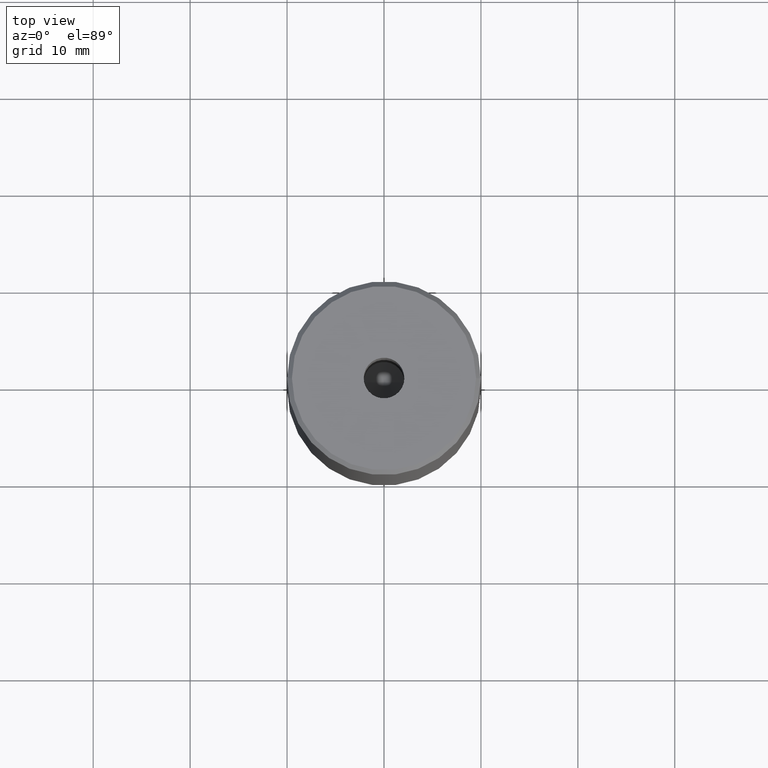
[diagram: clean part render]
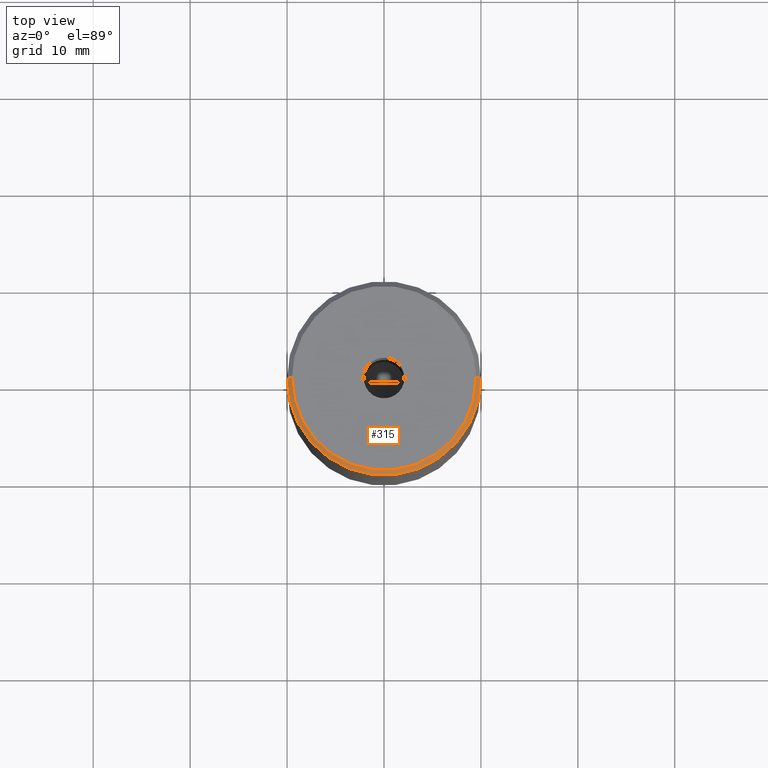
[diagram: same view with one face highlighted and labeled with its STEP entity id]
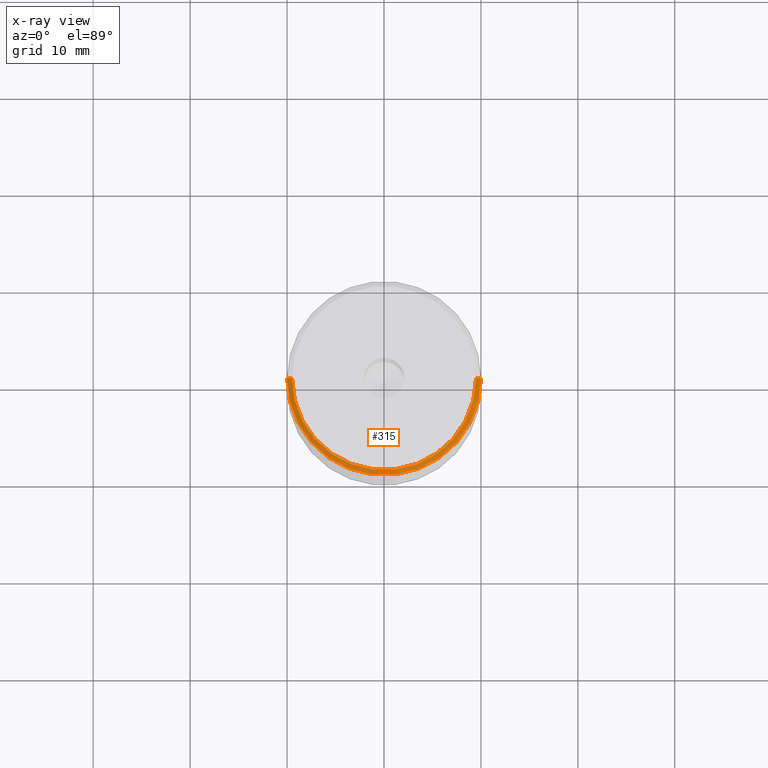
[diagram: x-ray of the same camera — body ghosted, the highlighted face saturated]
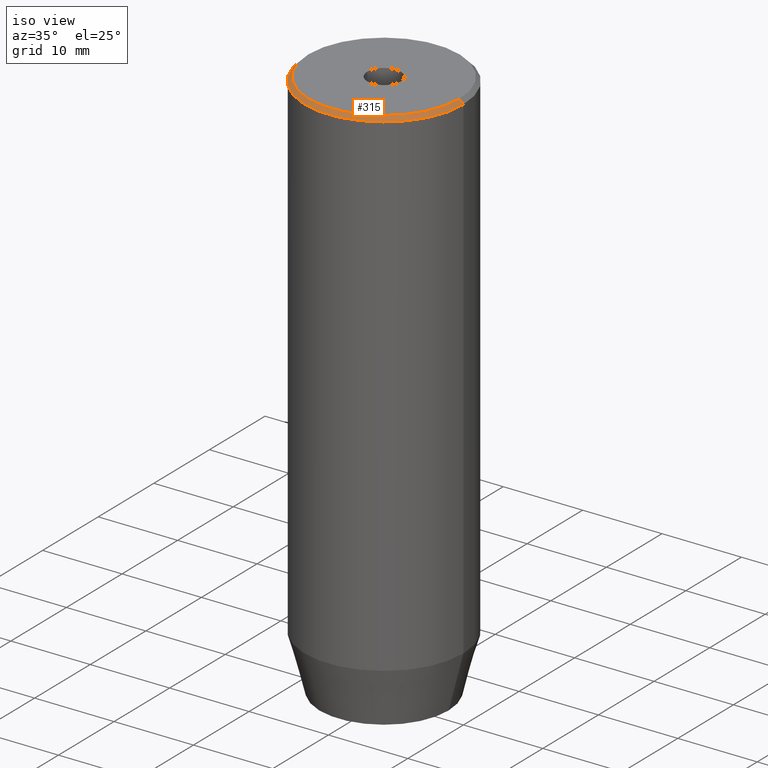
[diagram: same view with one face highlighted and labeled with its STEP entity id]
A machine part, top view. The second image highlights one B-rep face of the part: STEP entity #315.
The next image is the same camera in x-ray: the body ghosted, the highlighted face saturated — about 0% of this face is hidden behind the body in this view.
A second angle (iso view) of the same face is appended — the face is thin or edge-on in the first view.
In plain terms, the highlighted conical surface has half-angle 45 deg.
Its self-contained STEP definition (entity closure, byte-faithful):
#22 = DIRECTION ( 'NONE',  ( 1.000000000000000000, 0.000000000000000000, 0.000000000000000000 ) ) ;
#33 = DIRECTION ( 'NONE',  ( 0.7071067811865525687, 8.659560562354995721E-17, -0.7071067811865425767 ) ) ;
#36 = AXIS2_PLACEMENT_3D ( 'NONE', #190, #547, #22 ) ;
#38 = VECTOR ( 'NONE', #33, 999.9999999999998863 ) ;
#82 = EDGE_LOOP ( 'NONE', ( #308, #339, #504, #370 ) ) ;
#91 = FACE_OUTER_BOUND ( 'NONE', #82, .T. ) ;
#124 = LINE ( 'NONE', #417, #38 ) ;
#129 = CARTESIAN_POINT ( 'NONE',  ( 0.000000000000000000, 0.000000000000000000, 0.000000000000000000 ) ) ;
#132 = CONICAL_SURFACE ( 'NONE', #282, 9.500000000000001776, 0.7853981633974552734 ) ;
#139 = VERTEX_POINT ( 'NONE', #390 ) ;
#142 = EDGE_CURVE ( 'NONE', #139, #195, #586, .T. ) ;
#145 = CARTESIAN_POINT ( 'NONE',  ( 9.500000000000001776, 1.194030629168669469E-15, 0.000000000000000000 ) ) ;
#161 = AXIS2_PLACEMENT_3D ( 'NONE', #369, #564, #235 ) ;
#176 = VERTEX_POINT ( 'NONE', #145 ) ;
#177 = CARTESIAN_POINT ( 'NONE',  ( -9.500000000000001776, 0.000000000000000000, 0.000000000000000000 ) ) ;
#190 = CARTESIAN_POINT ( 'NONE',  ( 0.000000000000000000, 0.000000000000000000, 0.000000000000000000 ) ) ;
#195 = VERTEX_POINT ( 'NONE', #320 ) ;
#211 = EDGE_CURVE ( 'NONE', #428, #195, #251, .T. ) ;
#220 = EDGE_CURVE ( 'NONE', #139, #176, #242, .T. ) ;
#235 = DIRECTION ( 'NONE',  ( 1.000000000000000000, 0.000000000000000000, 0.000000000000000000 ) ) ;
#242 = CIRCLE ( 'NONE', #36, 9.500000000000001776 ) ;
#251 = CIRCLE ( 'NONE', #161, 10.00000000000000000 ) ;
#255 = DIRECTION ( 'NONE',  ( -1.000000000000000000, 0.000000000000000000, 0.000000000000000000 ) ) ;
#276 = VECTOR ( 'NONE', #435, 999.9999999999998863 ) ;
#282 = AXIS2_PLACEMENT_3D ( 'NONE', #129, #466, #255 ) ;
#308 = ORIENTED_EDGE ( 'NONE', *, *, #421, .F. ) ;
#315 = ADVANCED_FACE ( 'NONE', ( #91 ), #132, .T. ) ;
#320 = CARTESIAN_POINT ( 'NONE',  ( -10.00000000000000000, 1.224646799147353256E-15, -0.4999999999999917843 ) ) ;
#339 = ORIENTED_EDGE ( 'NONE', *, *, #220, .F. ) ;
#369 = CARTESIAN_POINT ( 'NONE',  ( 0.000000000000000000, 0.000000000000000000, -0.4999999999999917843 ) ) ;
#370 = ORIENTED_EDGE ( 'NONE', *, *, #211, .F. ) ;
#390 = CARTESIAN_POINT ( 'NONE',  ( -9.500000000000001776, 0.000000000000000000, 0.000000000000000000 ) ) ;
#417 = CARTESIAN_POINT ( 'NONE',  ( 9.500000000000001776, 1.163414459189985682E-15, 0.000000000000000000 ) ) ;
#421 = EDGE_CURVE ( 'NONE', #176, #428, #124, .T. ) ;
#428 = VERTEX_POINT ( 'NONE', #507 ) ;
#435 = DIRECTION ( 'NONE',  ( -0.7071067811865525687, 0.000000000000000000, -0.7071067811865425767 ) ) ;
#466 = DIRECTION ( 'NONE',  ( 0.000000000000000000, 0.000000000000000000, -1.000000000000000000 ) ) ;
#504 = ORIENTED_EDGE ( 'NONE', *, *, #142, .T. ) ;
#507 = CARTESIAN_POINT ( 'NONE',  ( 10.00000000000000000, 0.000000000000000000, -0.4999999999999917843 ) ) ;
#547 = DIRECTION ( 'NONE',  ( -0.000000000000000000, -0.000000000000000000, 1.000000000000000000 ) ) ;
#564 = DIRECTION ( 'NONE',  ( 0.000000000000000000, 0.000000000000000000, -1.000000000000000000 ) ) ;
#586 = LINE ( 'NONE', #177, #276 ) ;